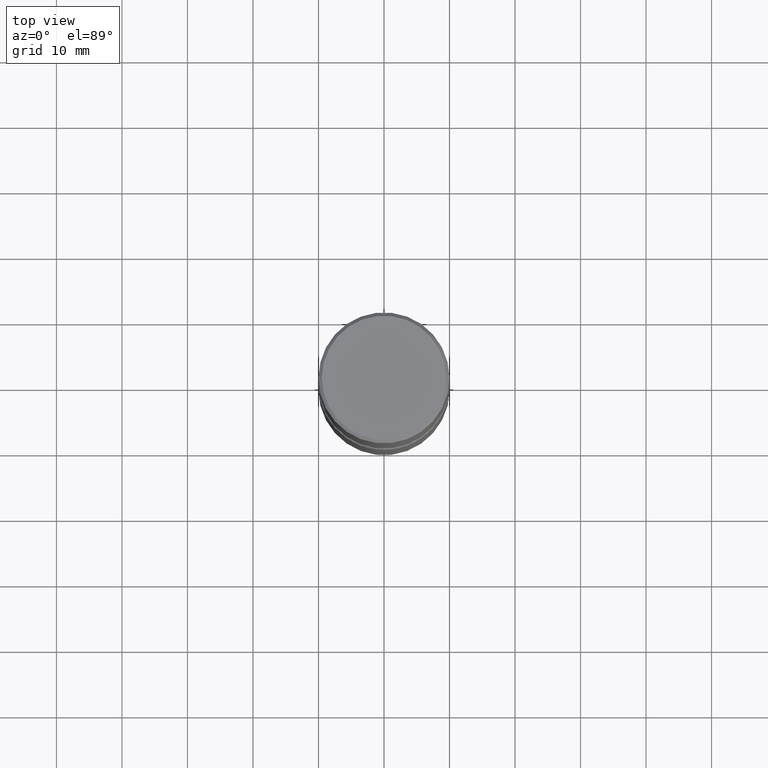
[diagram: clean part render]
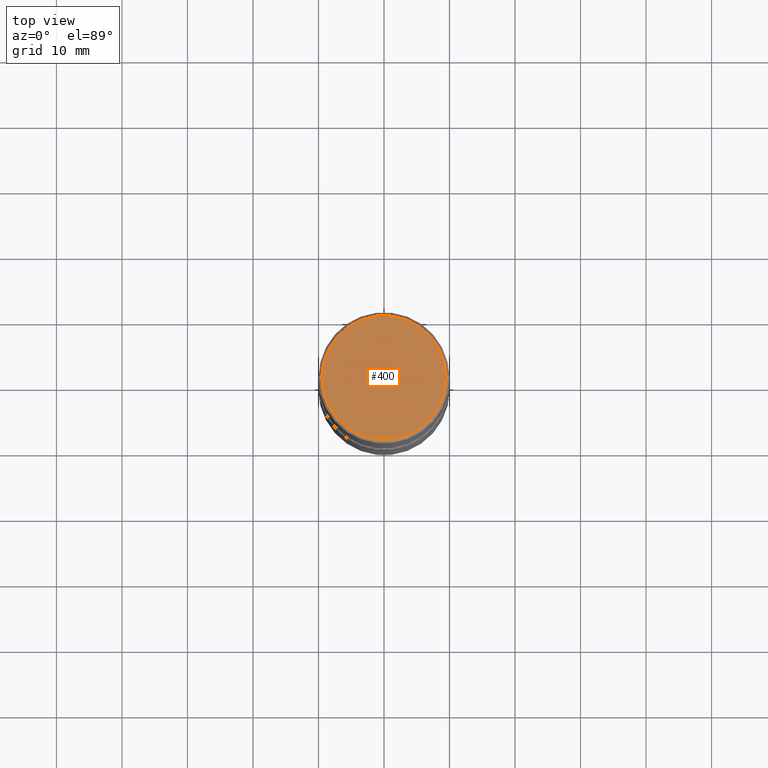
[diagram: same view with one face highlighted and labeled with its STEP entity id]
A machine part, top view. The second image highlights one B-rep face of the part: STEP entity #400.
In plain terms, the highlighted planar face has unit normal (0, -0, -1).
Its self-contained STEP definition (entity closure, byte-faithful):
#10 = FACE_OUTER_BOUND ( 'NONE', #152, .T. ) ;
#118 = AXIS2_PLACEMENT_3D ( 'NONE', #450, #319, #151 ) ;
#125 = VERTEX_POINT ( 'NONE', #299 ) ;
#128 = AXIS2_PLACEMENT_3D ( 'NONE', #530, #403, #185 ) ;
#151 = DIRECTION ( 'NONE',  ( 1.000000000000000000, -6.982962677686266711E-15, 4.876212485538973437E-29 ) ) ;
#152 = EDGE_LOOP ( 'NONE', ( #233, #361 ) ) ;
#176 = PLANE ( 'NONE',  #505 ) ;
#180 = DIRECTION ( 'NONE',  ( 2.438088387897960049E-29, -3.491481338843145188E-15, -1.000000000000000000 ) ) ;
#185 = DIRECTION ( 'NONE',  ( 1.000000000000000000, -6.982962677686266711E-15, 4.876212485538973437E-29 ) ) ;
#212 = CIRCLE ( 'NONE', #128, 0.3737000000000001432 ) ;
#233 = ORIENTED_EDGE ( 'NONE', *, *, #336, .T. ) ;
#299 = CARTESIAN_POINT ( 'NONE',  ( -0.3737000000000001432, 2.644447966039790241E-15, 8.537024980182435319E-18 ) ) ;
#310 = DIRECTION ( 'NONE',  ( -1.000000000000000000, 6.982962677686265922E-15, -4.876176775795935793E-29 ) ) ;
#319 = DIRECTION ( 'NONE',  ( -2.445468806185136597E-29, 3.491481338843145583E-15, 1.000000000000000000 ) ) ;
#336 = EDGE_CURVE ( 'NONE', #125, #402, #212, .T. ) ;
#352 = CARTESIAN_POINT ( 'NONE',  ( 2.609533152651358592E-15, 0.3737000000000001432, -1.300498063835583800E-15 ) ) ;
#359 = CIRCLE ( 'NONE', #118, 0.3737000000000001432 ) ;
#361 = ORIENTED_EDGE ( 'NONE', *, *, #406, .T. ) ;
#400 = ADVANCED_FACE ( 'NONE', ( #10 ), #176, .F. ) ;
#402 = VERTEX_POINT ( 'NONE', #541 ) ;
#403 = DIRECTION ( 'NONE',  ( -2.445468806185136597E-29, 3.491481338843145583E-15, 1.000000000000000000 ) ) ;
#406 = EDGE_CURVE ( 'NONE', #402, #125, #359, .T. ) ;
#450 = CARTESIAN_POINT ( 'NONE',  ( -2.087702828670435750E-46, 2.980686340760889474E-32, 8.537024980200807150E-18 ) ) ;
#505 = AXIS2_PLACEMENT_3D ( 'NONE', #352, #180, #310 ) ;
#530 = CARTESIAN_POINT ( 'NONE',  ( -2.087702828670435750E-46, 2.980686340760889474E-32, 8.537024980200807150E-18 ) ) ;
#541 = CARTESIAN_POINT ( 'NONE',  ( 0.3737000000000001432, -2.667287895133369937E-15, 8.537024980219259100E-18 ) ) ;